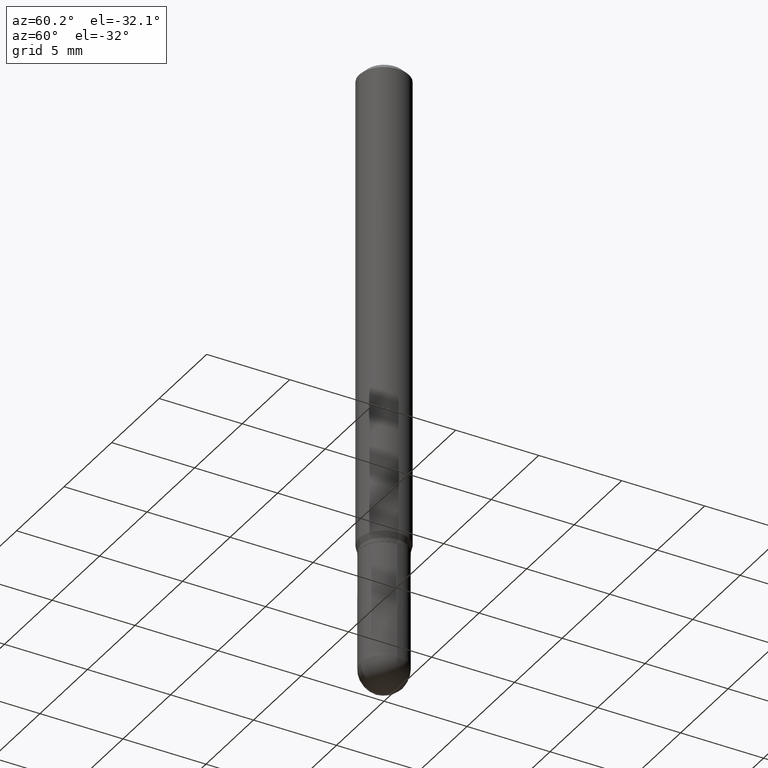
[diagram: clean part render]
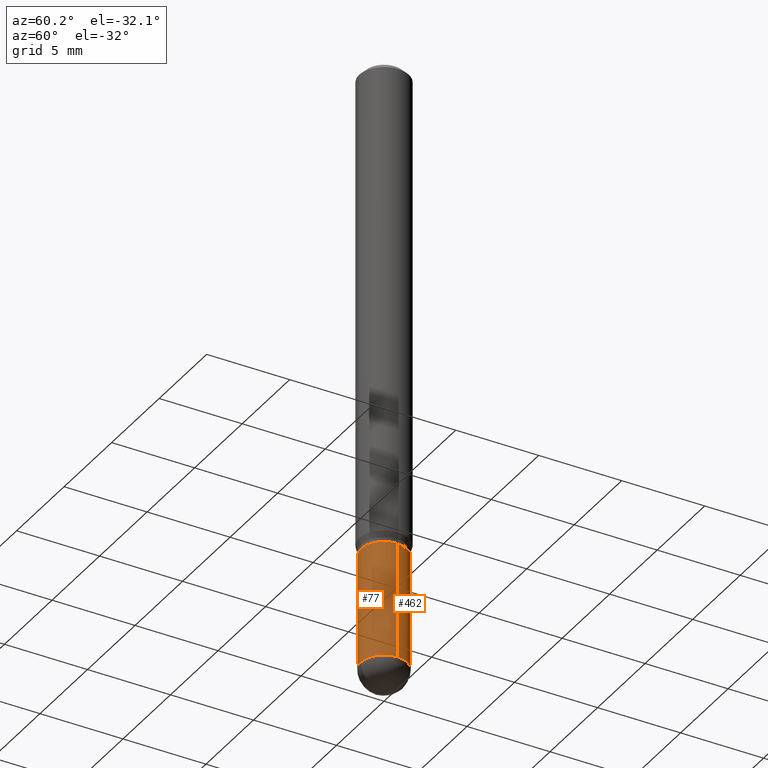
[diagram: same view with one multi-face feature highlighted, each face labeled with its STEP entity id]
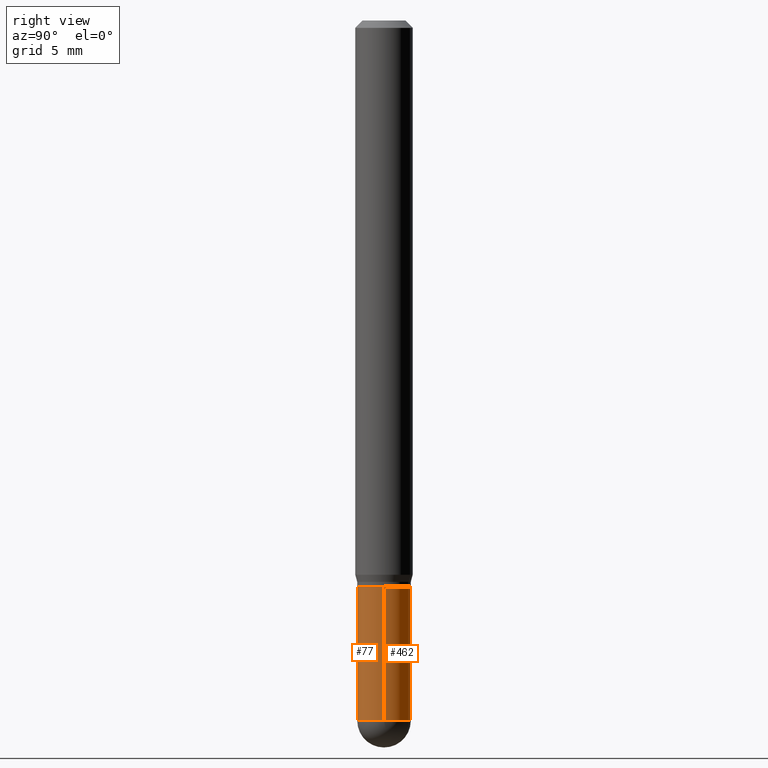
[diagram: same view with one multi-face feature highlighted, each face labeled with its STEP entity id]
A machine part, auxiliary view. The highlighted faces form ONE feature: a constant-radius fillet chain: 2 tangent blend faces with common blend radius 1.3995 mm. The faces share edges in the B-rep.
A second angle (right view) of the same feature is appended — it is thin or edge-on in the first view.
Their STEP definitions:
[1] entity #462 (Cylinder):
#4 = CARTESIAN_POINT ( 'NONE',  ( 2.849949346728157749E-29, -4.068972352287801446E-15, -1.165399999999999991 ) ) ;
#5 = VERTEX_POINT ( 'NONE', #387 ) ;
#9 = VERTEX_POINT ( 'NONE', #27 ) ;
#17 = VECTOR ( 'NONE', #363, 39.37007874015748143 ) ;
#20 = CARTESIAN_POINT ( 'NONE',  ( -0.05510000000000001702, -4.158589433376571291E-15, -1.440999999999999837 ) ) ;
#27 = CARTESIAN_POINT ( 'NONE',  ( 0.05510000000000000314, -4.453733595828315821E-15, -1.165399999999999991 ) ) ;
#29 = AXIS2_PLACEMENT_3D ( 'NONE', #144, #53, #419 ) ;
#31 = CARTESIAN_POINT ( 'NONE',  ( 3.915090474038502304E-16, 0.05509999999999495857, -1.441000000000000059 ) ) ;
#49 = AXIS2_PLACEMENT_3D ( 'NONE', #218, #205, #129 ) ;
#53 = DIRECTION ( 'NONE',  ( -2.445468806185136597E-29, 3.491481338843145583E-15, 1.000000000000000000 ) ) ;
#65 = EDGE_CURVE ( 'NONE', #349, #420, #360, .T. ) ;
#66 = AXIS2_PLACEMENT_3D ( 'NONE', #4, #357, #78 ) ;
#70 = CARTESIAN_POINT ( 'NONE',  ( -0.05510000000000001702, 3.915090474038153233E-16, -2.710333234730453480E-30 ) ) ;
#74 = ORIENTED_EDGE ( 'NONE', *, *, #198, .F. ) ;
#78 = DIRECTION ( 'NONE',  ( 1.000000000000000000, -6.982962677686274599E-15, 0.000000000000000000 ) ) ;
#81 = ORIENTED_EDGE ( 'NONE', *, *, #281, .T. ) ;
#97 = VERTEX_POINT ( 'NONE', #31 ) ;
#104 = CIRCLE ( 'NONE', #66, 0.05510000000000000314 ) ;
#129 = DIRECTION ( 'NONE',  ( 1.000000000000000000, -6.982962677686272233E-15, 0.000000000000000000 ) ) ;
#143 = EDGE_CURVE ( 'NONE', #9, #420, #104, .T. ) ;
#144 = CARTESIAN_POINT ( 'NONE',  ( 3.523920549712781226E-29, -5.031224609272972078E-15, -1.440999999999999837 ) ) ;
#147 = VECTOR ( 'NONE', #247, 39.37007874015748143 ) ;
#178 = CARTESIAN_POINT ( 'NONE',  ( 0.000000000000000000, 0.000000000000000000, 0.000000000000000000 ) ) ;
#180 = CYLINDRICAL_SURFACE ( 'NONE', #182, 0.05510000000000001702 ) ;
#182 = AXIS2_PLACEMENT_3D ( 'NONE', #178, #261, #415 ) ;
#198 = EDGE_CURVE ( 'NONE', #5, #9, #296, .T. ) ;
#205 = DIRECTION ( 'NONE',  ( -2.445468806185136597E-29, 3.491481338843145583E-15, 1.000000000000000000 ) ) ;
#212 = CIRCLE ( 'NONE', #29, 0.05510000000000001702 ) ;
#218 = CARTESIAN_POINT ( 'NONE',  ( 3.523920549712781226E-29, -5.031224609272972078E-15, -1.440999999999999837 ) ) ;
#247 = DIRECTION ( 'NONE',  ( -2.445468806185136877E-29, 3.491481338843145188E-15, 1.000000000000000000 ) ) ;
#261 = DIRECTION ( 'NONE',  ( -2.445468806185136597E-29, 3.491481338843145583E-15, 1.000000000000000000 ) ) ;
#281 = EDGE_CURVE ( 'NONE', #5, #97, #329, .T. ) ;
#296 = LINE ( 'NONE', #451, #147 ) ;
#299 = ORIENTED_EDGE ( 'NONE', *, *, #143, .F. ) ;
#306 = ORIENTED_EDGE ( 'NONE', *, *, #348, .T. ) ;
#329 = CIRCLE ( 'NONE', #49, 0.05510000000000001702 ) ;
#348 = EDGE_CURVE ( 'NONE', #97, #349, #212, .T. ) ;
#349 = VERTEX_POINT ( 'NONE', #20 ) ;
#357 = DIRECTION ( 'NONE',  ( -2.445468806185136597E-29, 3.491481338843145583E-15, 1.000000000000000000 ) ) ;
#360 = LINE ( 'NONE', #70, #17 ) ;
#363 = DIRECTION ( 'NONE',  ( -2.445468806185136877E-29, 3.491481338843145188E-15, 1.000000000000000000 ) ) ;
#379 = CARTESIAN_POINT ( 'NONE',  ( -0.05510000000000000314, -4.158589433376571291E-15, -1.165399999999999991 ) ) ;
#384 = FACE_OUTER_BOUND ( 'NONE', #477, .T. ) ;
#387 = CARTESIAN_POINT ( 'NONE',  ( 0.05510000000000001702, -4.934859724320901137E-15, -1.440999999999999837 ) ) ;
#412 = ORIENTED_EDGE ( 'NONE', *, *, #65, .T. ) ;
#415 = DIRECTION ( 'NONE',  ( 1.000000000000000000, -6.982962677686265922E-15, 4.876176775795935793E-29 ) ) ;
#419 = DIRECTION ( 'NONE',  ( 1.000000000000000000, -6.982962677686272233E-15, 0.000000000000000000 ) ) ;
#420 = VERTEX_POINT ( 'NONE', #379 ) ;
#451 = CARTESIAN_POINT ( 'NONE',  ( 0.05510000000000001702, -3.847612435405133888E-16, 2.686773403463561367E-30 ) ) ;
#462 = ADVANCED_FACE ( 'NONE', ( #384 ), #180, .T. ) ;
#477 = EDGE_LOOP ( 'NONE', ( #306, #412, #299, #74, #81 ) ) ;
[2] entity #77 (Cylinder):
#5 = VERTEX_POINT ( 'NONE', #387 ) ;
#9 = VERTEX_POINT ( 'NONE', #27 ) ;
#10 = CIRCLE ( 'NONE', #194, 0.05510000000000001702 ) ;
#17 = VECTOR ( 'NONE', #363, 39.37007874015748143 ) ;
#20 = CARTESIAN_POINT ( 'NONE',  ( -0.05510000000000001702, -4.158589433376571291E-15, -1.440999999999999837 ) ) ;
#27 = CARTESIAN_POINT ( 'NONE',  ( 0.05510000000000000314, -4.453733595828315821E-15, -1.165399999999999991 ) ) ;
#43 = AXIS2_PLACEMENT_3D ( 'NONE', #163, #431, #193 ) ;
#56 = DIRECTION ( 'NONE',  ( -2.445468806185136597E-29, 3.491481338843145583E-15, 1.000000000000000000 ) ) ;
#57 = VERTEX_POINT ( 'NONE', #440 ) ;
#58 = AXIS2_PLACEMENT_3D ( 'NONE', #275, #244, #403 ) ;
#65 = EDGE_CURVE ( 'NONE', #349, #420, #360, .T. ) ;
#67 = CIRCLE ( 'NONE', #167, 0.05510000000000001702 ) ;
#70 = CARTESIAN_POINT ( 'NONE',  ( -0.05510000000000001702, 3.915090474038153233E-16, -2.710333234730453480E-30 ) ) ;
#77 = ADVANCED_FACE ( 'NONE', ( #397 ), #321, .T. ) ;
#121 = ORIENTED_EDGE ( 'NONE', *, *, #350, .T. ) ;
#133 = DIRECTION ( 'NONE',  ( 1.000000000000000000, -6.982962677686272233E-15, 0.000000000000000000 ) ) ;
#137 = CARTESIAN_POINT ( 'NONE',  ( 3.523920549712781226E-29, -5.031224609272972078E-15, -1.440999999999999837 ) ) ;
#147 = VECTOR ( 'NONE', #247, 39.37007874015748143 ) ;
#150 = EDGE_CURVE ( 'NONE', #420, #9, #416, .T. ) ;
#163 = CARTESIAN_POINT ( 'NONE',  ( 2.849949346728157749E-29, -4.068972352287801446E-15, -1.165399999999999991 ) ) ;
#167 = AXIS2_PLACEMENT_3D ( 'NONE', #303, #56, #229 ) ;
#193 = DIRECTION ( 'NONE',  ( 1.000000000000000000, -6.982962677686274599E-15, 0.000000000000000000 ) ) ;
#194 = AXIS2_PLACEMENT_3D ( 'NONE', #137, #492, #133 ) ;
#198 = EDGE_CURVE ( 'NONE', #5, #9, #296, .T. ) ;
#229 = DIRECTION ( 'NONE',  ( 1.000000000000000000, -6.982962677686272233E-15, 0.000000000000000000 ) ) ;
#230 = ORIENTED_EDGE ( 'NONE', *, *, #198, .T. ) ;
#233 = ORIENTED_EDGE ( 'NONE', *, *, #150, .F. ) ;
#244 = DIRECTION ( 'NONE',  ( -2.445468806185136597E-29, 3.491481338843145583E-15, 1.000000000000000000 ) ) ;
#247 = DIRECTION ( 'NONE',  ( -2.445468806185136877E-29, 3.491481338843145188E-15, 1.000000000000000000 ) ) ;
#265 = ORIENTED_EDGE ( 'NONE', *, *, #65, .F. ) ;
#275 = CARTESIAN_POINT ( 'NONE',  ( 0.000000000000000000, 0.000000000000000000, 0.000000000000000000 ) ) ;
#296 = LINE ( 'NONE', #451, #147 ) ;
#303 = CARTESIAN_POINT ( 'NONE',  ( 3.523920549712781226E-29, -5.031224609272972078E-15, -1.440999999999999837 ) ) ;
#321 = CYLINDRICAL_SURFACE ( 'NONE', #58, 0.05510000000000001702 ) ;
#349 = VERTEX_POINT ( 'NONE', #20 ) ;
#350 = EDGE_CURVE ( 'NONE', #349, #57, #67, .T. ) ;
#360 = LINE ( 'NONE', #70, #17 ) ;
#363 = DIRECTION ( 'NONE',  ( -2.445468806185136877E-29, 3.491481338843145188E-15, 1.000000000000000000 ) ) ;
#379 = CARTESIAN_POINT ( 'NONE',  ( -0.05510000000000000314, -4.158589433376571291E-15, -1.165399999999999991 ) ) ;
#387 = CARTESIAN_POINT ( 'NONE',  ( 0.05510000000000001702, -4.934859724320901137E-15, -1.440999999999999837 ) ) ;
#397 = FACE_OUTER_BOUND ( 'NONE', #466, .T. ) ;
#403 = DIRECTION ( 'NONE',  ( 1.000000000000000000, -6.982962677686265922E-15, 4.876176775795935793E-29 ) ) ;
#416 = CIRCLE ( 'NONE', #43, 0.05510000000000000314 ) ;
#420 = VERTEX_POINT ( 'NONE', #379 ) ;
#421 = EDGE_CURVE ( 'NONE', #57, #5, #10, .T. ) ;
#431 = DIRECTION ( 'NONE',  ( -2.445468806185136597E-29, 3.491481338843145583E-15, 1.000000000000000000 ) ) ;
#440 = CARTESIAN_POINT ( 'NONE',  ( -3.847612435404779394E-16, -0.05510000000000501996, -1.440999999999999392 ) ) ;
#447 = ORIENTED_EDGE ( 'NONE', *, *, #421, .T. ) ;
#451 = CARTESIAN_POINT ( 'NONE',  ( 0.05510000000000001702, -3.847612435405133888E-16, 2.686773403463561367E-30 ) ) ;
#466 = EDGE_LOOP ( 'NONE', ( #265, #121, #447, #230, #233 ) ) ;
#492 = DIRECTION ( 'NONE',  ( -2.445468806185136597E-29, 3.491481338843145583E-15, 1.000000000000000000 ) ) ;